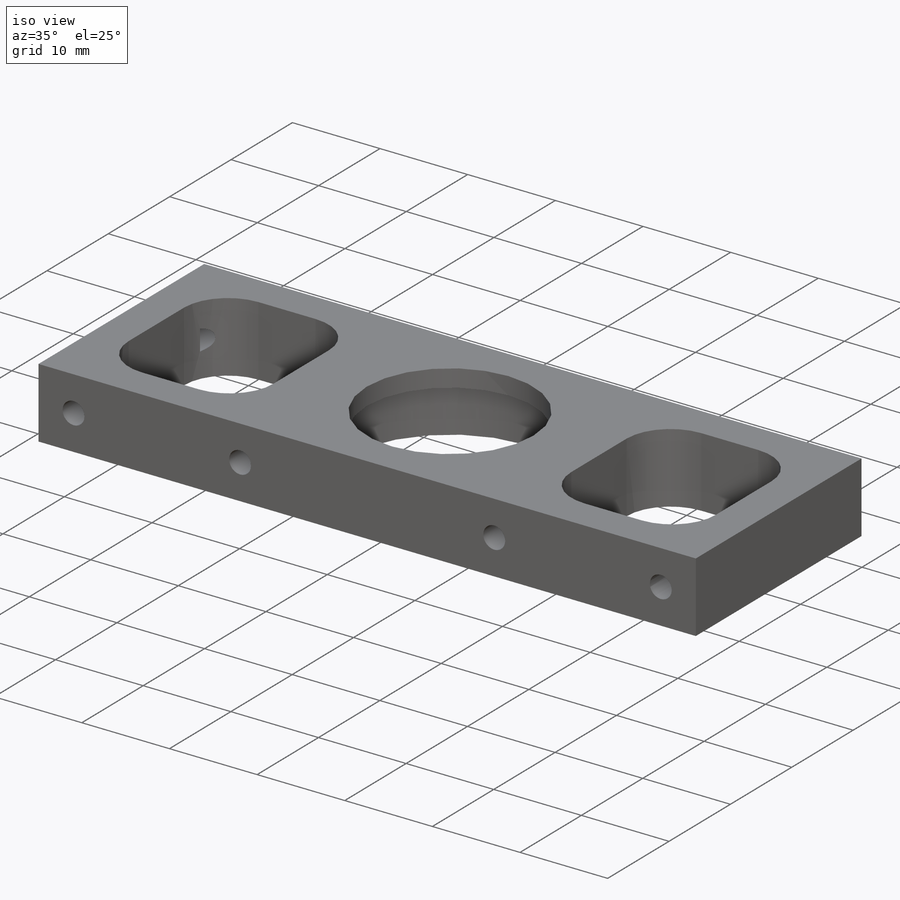
[diagram: iso view]
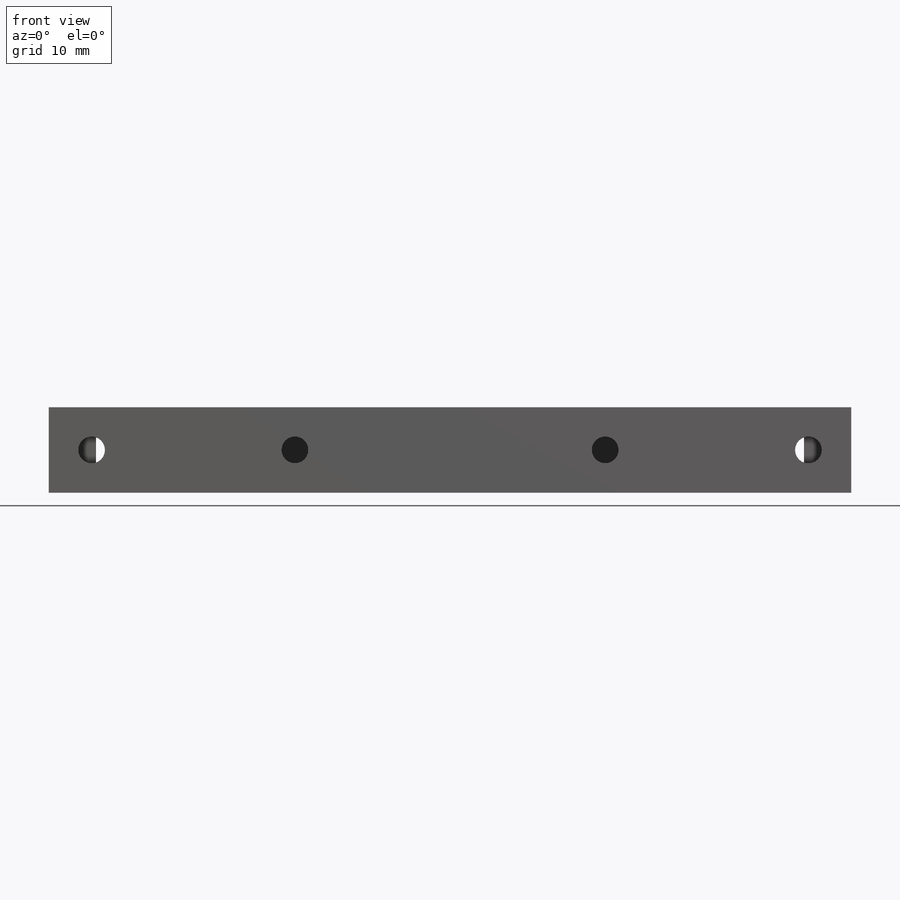
[diagram: front view]
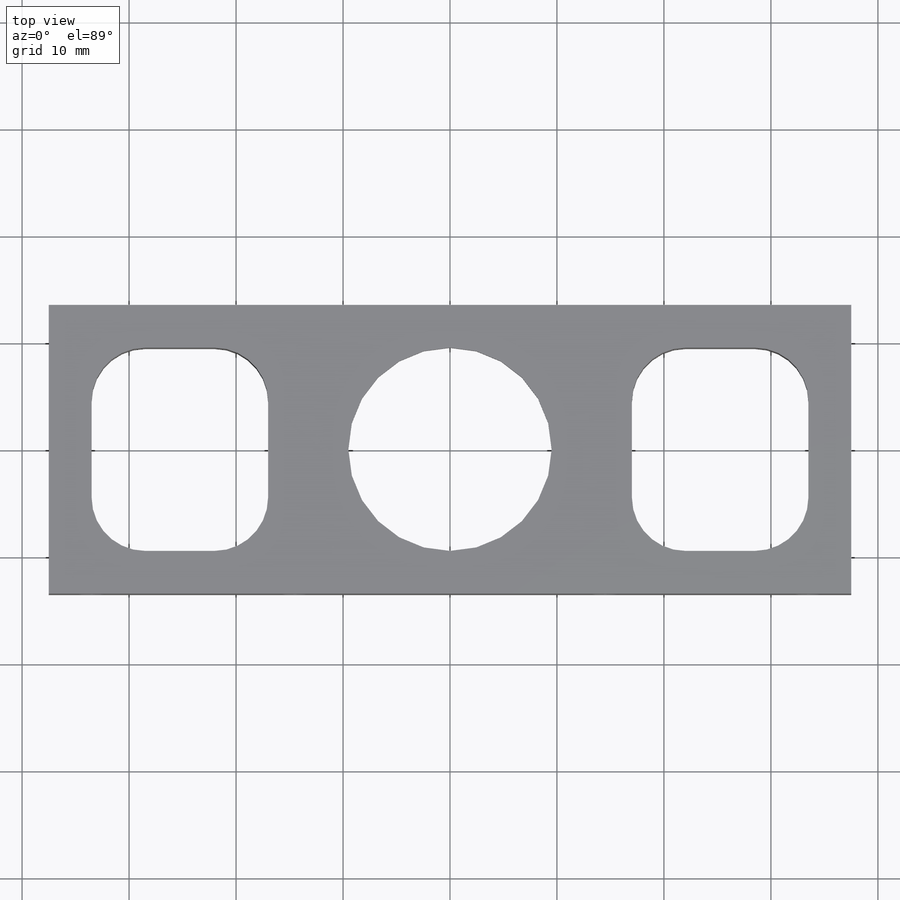
[diagram: top view]
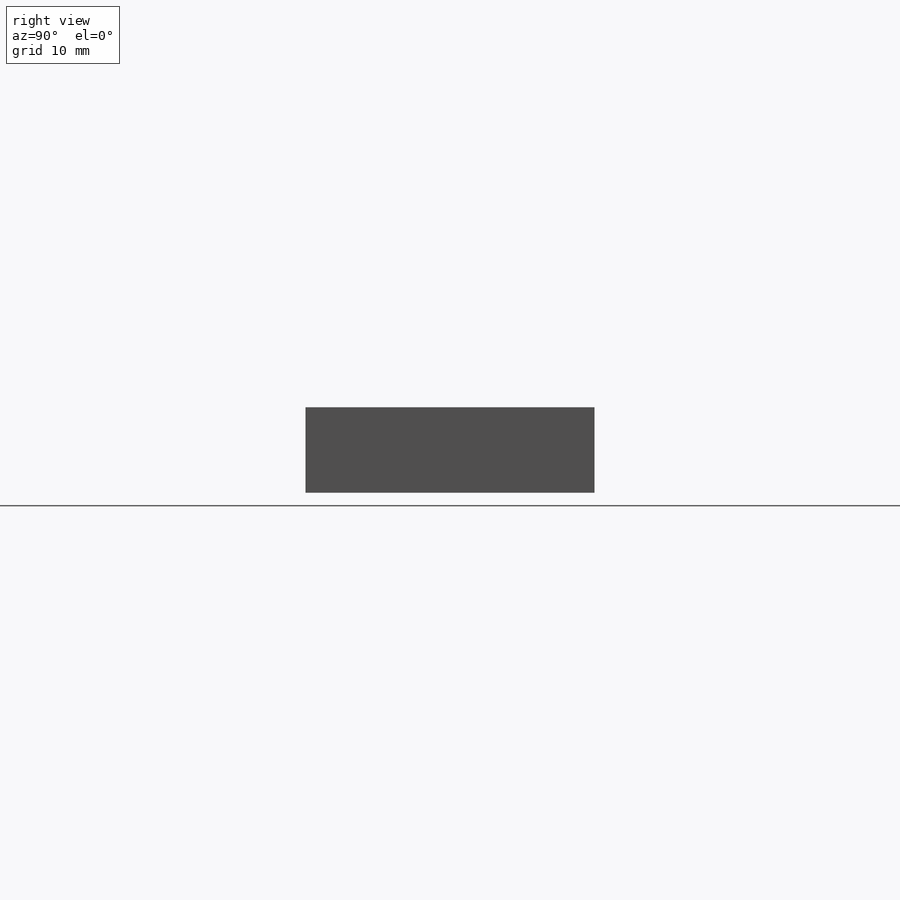
[diagram: right view]
SOLIDWORKS PART (.sldprt)
format: sldprt  version: not decoded by parser v0  size: 356,352 bytes
history: native  units: mm
features: sketch x5, cut_extrude x4, plane x3, material x1, extrude x1 (+10 scaffold rows collapsed)
feature tree (24):
  scaffold x10  (default folders/planes/origin — collapsed)
  material  "Материал <не указан>"
  plane  "Спереди"
  plane  "Сверху"
  plane  "Справа"
  sketch  "Эскиз1"  dims[D3=19.0mm D12=7.0mm D13=5.0mm D1=75.0mm D2=27.0mm D4=11.5mm D5=9.0mm D6=6.0mm D7=9.0mm D8=4.0mm D9=4.0mm D10=4.0mm D11=17.0mm]
  extrude  "Бобышка-Вытянуть1"  Depth=8mm
  sketch  "Эскиз9"  dims[D1=24.0mm]
  cut_extrude  "Вырез-Вытянуть7"  Depth=6mm
  sketch  "Эскиз11"  dims[c1.D1=2.5mm c1.D2=2.5mm c1.D3=4.0mm c1.D4=4.0mm c1.D5=14.5mm c1.D6=4.0mm c2.D6=33.5mm]
  cut_extrude  "Вырез-Вытянуть8"  Depth=7mm
  sketch  "Эскиз12"  dims[D5=2.5mm D6=2.5mm D1=14.5mm D2=33.5mm D3=4.0mm D4=4.0mm]
  cut_extrude  "Вырез-Вытянуть9"  Depth=7mm
  sketch  "Эскиз13"  dims[D1=2.5mm]
  cut_extrude  "Вырез-Вытянуть10"  Depth=6mm
decode coverage: 10 of 10 modeling features carry decoded parameters
note: suppression state not decoded; provenance and decode notes live in map.json
